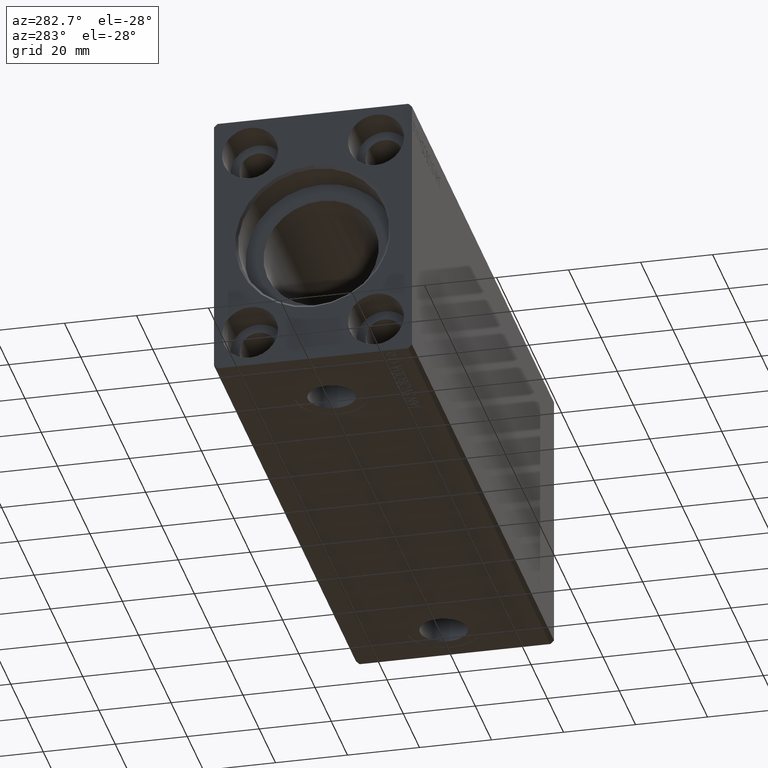
[diagram: clean part render]
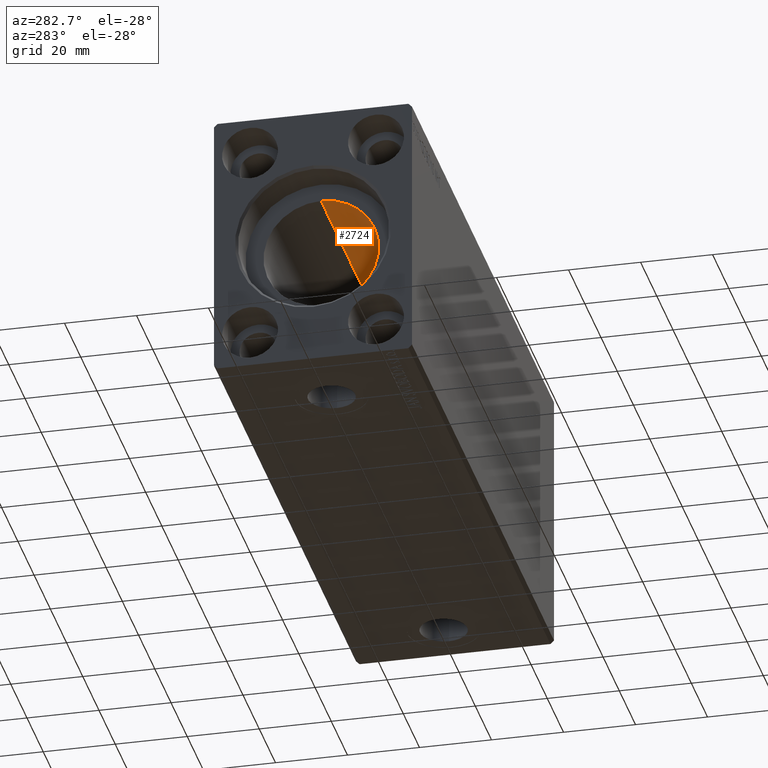
[diagram: same view with one face highlighted and labeled with its STEP entity id]
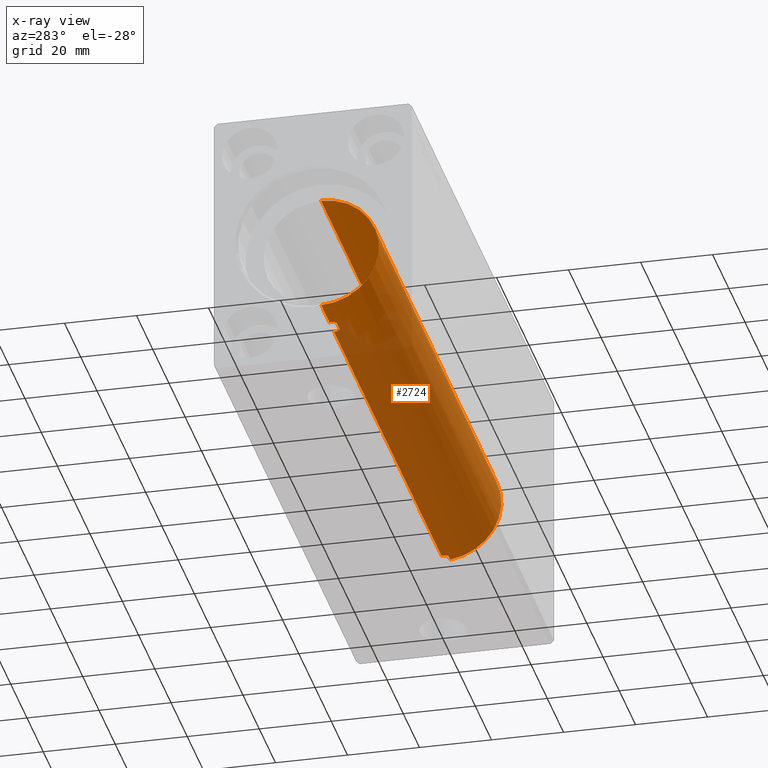
[diagram: x-ray of the same camera — body ghosted, the highlighted face saturated]
A machine part, auxiliary view. The second image highlights one B-rep face of the part: STEP entity #2724.
The next image is the same camera in x-ray: the body ghosted, the highlighted face saturated — about 80% of this face is hidden behind the body in this view.
In plain terms, the highlighted cylindrical surface (partial cylindrical patch) has radius 16 mm, axis along (-1, -0, -0).
Its self-contained STEP definition (entity closure, byte-faithful):
#165 = ORIENTED_EDGE ( 'NONE', *, *, #17155, .F. ) ;
#308 = CARTESIAN_POINT ( 'NONE',  ( 161.1999999999999886, 1.959434878635765131E-15, -16.00000000000000000 ) ) ;
#1005 = FACE_OUTER_BOUND ( 'NONE', #1766, .T. ) ;
#1701 = CARTESIAN_POINT ( 'NONE',  ( 158.2499999999999716, 1.952197214168045357E-15, -16.00000000000000000 ) ) ;
#1766 = EDGE_LOOP ( 'NONE', ( #24603, #13185, #6406, #165, #12410, #13199, #5328, #7443, #28510, #17303 ) ) ;
#1942 = CARTESIAN_POINT ( 'NONE',  ( 10.00000000000000888, 1.959434878635765131E-15, -16.00000000000000000 ) ) ;
#2724 = ADVANCED_FACE ( 'NONE', ( #1005 ), #14125, .F. ) ;
#2869 = DIRECTION ( 'NONE',  ( 0.000000000000000000, 0.000000000000000000, 1.000000000000000000 ) ) ;
#3102 = VECTOR ( 'NONE', #37056, 1000.000000000000000 ) ;
#3441 = LINE ( 'NONE', #29732, #3102 ) ;
#3491 = CARTESIAN_POINT ( 'NONE',  ( 20.32156169250369260, -0.6438297815899732823, -15.98783114994251342 ) ) ;
#3539 = LINE ( 'NONE', #308, #25508 ) ;
#3712 = CARTESIAN_POINT ( 'NONE',  ( 20.90894763336742201, -1.786057109949259036, -15.89999999999998970 ) ) ;
#3766 = B_SPLINE_CURVE_WITH_KNOTS ( 'NONE', 3,
 ( #14087, #27246, #14507, #40401, #10854, #23356, #23993, #37158, #20762, #7625 ),
 .UNSPECIFIED., .F., .F.,
 ( 4, 2, 2, 2, 4 ),
 ( 0.001937515079377275266, 0.002421672136522721661, 0.002905829193668167838, 0.003389986250813614450, 0.003874143307959061061 ),
 .UNSPECIFIED. ) ;
#4080 = EDGE_CURVE ( 'NONE', #31539, #29841, #29201, .T. ) ;
#4450 = DIRECTION ( 'NONE',  ( -1.000000000000000000, -0.000000000000000000, -0.000000000000000000 ) ) ;
#4936 = CARTESIAN_POINT ( 'NONE',  ( 158.9089476333673758, -1.786057109949259036, -15.89999999999998970 ) ) ;
#5328 = ORIENTED_EDGE ( 'NONE', *, *, #25271, .T. ) ;
#5580 = VERTEX_POINT ( 'NONE', #11955 ) ;
#5681 = CARTESIAN_POINT ( 'NONE',  ( 10.00000000000000888, 0.000000000000000000, 0.000000000000000000 ) ) ;
#6406 = ORIENTED_EDGE ( 'NONE', *, *, #17668, .T. ) ;
#6928 = CARTESIAN_POINT ( 'NONE',  ( 20.53330222194893651, -1.258673386848674136, -15.95335904956524864 ) ) ;
#7434 = LINE ( 'NONE', #20357, #20751 ) ;
#7443 = ORIENTED_EDGE ( 'NONE', *, *, #22734, .F. ) ;
#7625 = CARTESIAN_POINT ( 'NONE',  ( 25.09105236663257799, -1.786057109949259036, -15.89999999999998970 ) ) ;
#8417 = DIRECTION ( 'NONE',  ( 1.000000000000000000, 0.000000000000000000, 0.000000000000000000 ) ) ;
#8686 = DIRECTION ( 'NONE',  ( -1.000000000000000000, 0.000000000000000000, 0.000000000000000000 ) ) ;
#9554 = AXIS2_PLACEMENT_3D ( 'NONE', #33549, #4450, #27285 ) ;
#9945 = CIRCLE ( 'NONE', #21658, 16.00000000000000000 ) ;
#10269 = CARTESIAN_POINT ( 'NONE',  ( 161.1999999999999886, 0.000000000000000000, 0.000000000000000000 ) ) ;
#10633 = CARTESIAN_POINT ( 'NONE',  ( 161.1999999999999886, -1.786057109949259036, -15.89999999999998970 ) ) ;
#10845 = LINE ( 'NONE', #10633, #13739 ) ;
#10854 = CARTESIAN_POINT ( 'NONE',  ( 25.63599175831138055, -0.8002234119869079398, -15.98070334047259955 ) ) ;
#11552 = VERTEX_POINT ( 'NONE', #1942 ) ;
#11955 = CARTESIAN_POINT ( 'NONE',  ( 25.75000000000000000, 1.966672448372719994E-15, -16.00000000000000000 ) ) ;
#12410 = ORIENTED_EDGE ( 'NONE', *, *, #40780, .T. ) ;
#13185 = ORIENTED_EDGE ( 'NONE', *, *, #36380, .T. ) ;
#13199 = ORIENTED_EDGE ( 'NONE', *, *, #20010, .T. ) ;
#13596 = CARTESIAN_POINT ( 'NONE',  ( 158.3638221377051423, -0.7997846173174847362, -15.98073294566550828 ) ) ;
#13739 = VECTOR ( 'NONE', #39960, 1000.000000000000000 ) ;
#14087 = CARTESIAN_POINT ( 'NONE',  ( 25.75000000000000000, 1.966672448372719994E-15, -16.00000000000000000 ) ) ;
#14125 = CYLINDRICAL_SURFACE ( 'NONE', #9554, 16.00000000000000000 ) ;
#14507 = CARTESIAN_POINT ( 'NONE',  ( 25.73564769785746265, -0.3237335850403303406, -15.99751506009603652 ) ) ;
#15292 = CARTESIAN_POINT ( 'NONE',  ( 161.1999999999999886, -1.786057109949259036, -15.89999999999998970 ) ) ;
#17155 = EDGE_CURVE ( 'NONE', #37500, #31284, #10845, .T. ) ;
#17303 = ORIENTED_EDGE ( 'NONE', *, *, #33145, .F. ) ;
#17354 = CARTESIAN_POINT ( 'NONE',  ( 25.09105236663257799, -1.786057109949259036, -15.89999999999998970 ) ) ;
#17668 = EDGE_CURVE ( 'NONE', #5580, #31284, #3766, .T. ) ;
#18049 = CARTESIAN_POINT ( 'NONE',  ( 158.6970053204564408, -1.537922561208757477, -15.92787311163533914 ) ) ;
#20010 = EDGE_CURVE ( 'NONE', #26201, #11552, #3539, .T. ) ;
#20060 = CARTESIAN_POINT ( 'NONE',  ( 20.36382213770520977, -0.7997846173174826268, -15.98073294566550118 ) ) ;
#20357 = CARTESIAN_POINT ( 'NONE',  ( 161.1999999999999886, 0.000000000000000000, 16.00000000000000000 ) ) ;
#20751 = VECTOR ( 'NONE', #33525, 1000.000000000000000 ) ;
#20762 = CARTESIAN_POINT ( 'NONE',  ( 25.19697699726532392, -1.662044306363392066, -15.91393043707982358 ) ) ;
#21658 = AXIS2_PLACEMENT_3D ( 'NONE', #10269, #36583, #29687 ) ;
#22734 = EDGE_CURVE ( 'NONE', #39734, #35220, #7434, .T. ) ;
#22870 = CIRCLE ( 'NONE', #27041, 16.00000000000000000 ) ;
#23356 = CARTESIAN_POINT ( 'NONE',  ( 25.52364185964664500, -1.104555034037123518, -15.96255602784426841 ) ) ;
#23993 = CARTESIAN_POINT ( 'NONE',  ( 25.45470800975462211, -1.250171241089525820, -15.95169574138015989 ) ) ;
#24091 = CARTESIAN_POINT ( 'NONE',  ( 158.2500000000000000, -0.1629275007895835126, -16.00000000000000355 ) ) ;
#24305 = CARTESIAN_POINT ( 'NONE',  ( 158.5333022219489010, -1.258673386848676579, -15.95335904956525575 ) ) ;
#24603 = ORIENTED_EDGE ( 'NONE', *, *, #4080, .T. ) ;
#25198 = CARTESIAN_POINT ( 'NONE',  ( 10.00000000000000888, 0.000000000000000000, 16.00000000000000000 ) ) ;
#25271 = EDGE_CURVE ( 'NONE', #11552, #35220, #22870, .T. ) ;
#25508 = VECTOR ( 'NONE', #26587, 1000.000000000000000 ) ;
#26201 = VERTEX_POINT ( 'NONE', #35366 ) ;
#26587 = DIRECTION ( 'NONE',  ( -1.000000000000000000, -0.000000000000000000, -0.000000000000000000 ) ) ;
#26799 = CARTESIAN_POINT ( 'NONE',  ( 161.1999999999999886, 0.000000000000000000, 16.00000000000000000 ) ) ;
#27041 = AXIS2_PLACEMENT_3D ( 'NONE', #5681, #8686, #2869 ) ;
#27246 = CARTESIAN_POINT ( 'NONE',  ( 25.75000000000000355, -0.1628529246558417520, -16.00000000000000355 ) ) ;
#27285 = DIRECTION ( 'NONE',  ( 0.000000000000000000, 0.000000000000000000, 1.000000000000000000 ) ) ;
#28510 = ORIENTED_EDGE ( 'NONE', *, *, #36628, .F. ) ;
#29201 = B_SPLINE_CURVE_WITH_KNOTS ( 'NONE', 3,
 ( #4936, #18049, #24305, #13596, #31221, #37474, #24091, #1701 ),
 .UNSPECIFIED., .F., .F.,
 ( 4, 2, 2, 4 ),
 ( 0.000000000000000000, 0.0009687575396886211531, 0.001453136309532946421, 0.001937515079377271580 ),
 .UNSPECIFIED. ) ;
#29567 = CARTESIAN_POINT ( 'NONE',  ( 20.25000000000000000, 1.952197298178576320E-15, -16.00000000000000000 ) ) ;
#29687 = DIRECTION ( 'NONE',  ( 0.000000000000000000, 0.000000000000000000, 1.000000000000000000 ) ) ;
#29732 = CARTESIAN_POINT ( 'NONE',  ( 161.1999999999999886, 1.959434878635765131E-15, -16.00000000000000000 ) ) ;
#29841 = VERTEX_POINT ( 'NONE', #30541 ) ;
#29874 = VECTOR ( 'NONE', #8417, 1000.000000000000000 ) ;
#30260 = VERTEX_POINT ( 'NONE', #34846 ) ;
#30541 = CARTESIAN_POINT ( 'NONE',  ( 158.2499999999999716, 1.952197214168045357E-15, -16.00000000000000000 ) ) ;
#31221 = CARTESIAN_POINT ( 'NONE',  ( 158.3215616925036215, -0.6438297815899727272, -15.98783114994251697 ) ) ;
#31284 = VERTEX_POINT ( 'NONE', #17354 ) ;
#31539 = VERTEX_POINT ( 'NONE', #34698 ) ;
#33007 = CARTESIAN_POINT ( 'NONE',  ( 20.69700532045647279, -1.537922561208758365, -15.92787311163533559 ) ) ;
#33145 = EDGE_CURVE ( 'NONE', #31539, #30260, #38154, .T. ) ;
#33525 = DIRECTION ( 'NONE',  ( -1.000000000000000000, -0.000000000000000000, -0.000000000000000000 ) ) ;
#33549 = CARTESIAN_POINT ( 'NONE',  ( 161.1999999999999886, 0.000000000000000000, 0.000000000000000000 ) ) ;
#33646 = B_SPLINE_CURVE_WITH_KNOTS ( 'NONE', 3,
 ( #3712, #33007, #6928, #20060, #3491, #36251, #39910, #29567 ),
 .UNSPECIFIED., .F., .F.,
 ( 4, 2, 2, 4 ),
 ( 0.000000000000000000, 0.0009687575396886361151, 0.001453136309532956395, 0.001937515079377276567 ),
 .UNSPECIFIED. ) ;
#33790 = CARTESIAN_POINT ( 'NONE',  ( 20.90894763336742201, -1.786057109949259036, -15.89999999999998970 ) ) ;
#34698 = CARTESIAN_POINT ( 'NONE',  ( 158.9089476333673758, -1.786057109949259036, -15.89999999999998970 ) ) ;
#34846 = CARTESIAN_POINT ( 'NONE',  ( 161.1999999999999886, -1.786057109949259036, -15.89999999999998970 ) ) ;
#35220 = VERTEX_POINT ( 'NONE', #25198 ) ;
#35366 = CARTESIAN_POINT ( 'NONE',  ( 20.25000000000000000, 1.952197298178576320E-15, -16.00000000000000000 ) ) ;
#36251 = CARTESIAN_POINT ( 'NONE',  ( 20.26463731697931792, -0.3260974502564742417, -15.99746611559688780 ) ) ;
#36380 = EDGE_CURVE ( 'NONE', #29841, #5580, #3441, .T. ) ;
#36583 = DIRECTION ( 'NONE',  ( -1.000000000000000000, 0.000000000000000000, 0.000000000000000000 ) ) ;
#36628 = EDGE_CURVE ( 'NONE', #30260, #39734, #9945, .T. ) ;
#37056 = DIRECTION ( 'NONE',  ( -1.000000000000000000, -0.000000000000000000, -0.000000000000000000 ) ) ;
#37158 = CARTESIAN_POINT ( 'NONE',  ( 25.29171577885876943, -1.528580496451062531, -15.92742812959714982 ) ) ;
#37474 = CARTESIAN_POINT ( 'NONE',  ( 158.2646373169793037, -0.3260974502564734645, -15.99746611559689136 ) ) ;
#37500 = VERTEX_POINT ( 'NONE', #33790 ) ;
#38154 = LINE ( 'NONE', #15292, #29874 ) ;
#39734 = VERTEX_POINT ( 'NONE', #26799 ) ;
#39910 = CARTESIAN_POINT ( 'NONE',  ( 20.24999999999999645, -0.1629275007895809035, -15.99999999999999645 ) ) ;
#39960 = DIRECTION ( 'NONE',  ( 1.000000000000000000, 0.000000000000000000, 0.000000000000000000 ) ) ;
#40401 = CARTESIAN_POINT ( 'NONE',  ( 25.67896445775845748, -0.6416550435731617208, -15.98791951246752596 ) ) ;
#40780 = EDGE_CURVE ( 'NONE', #37500, #26201, #33646, .T. ) ;